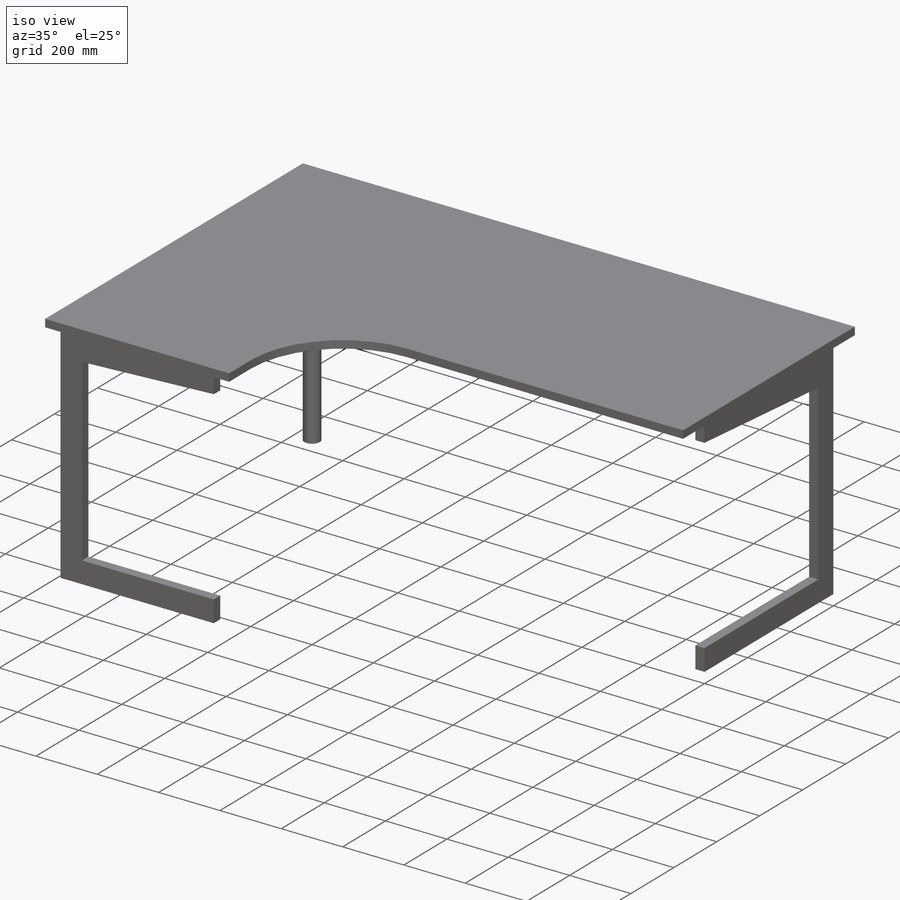
[diagram: iso view]
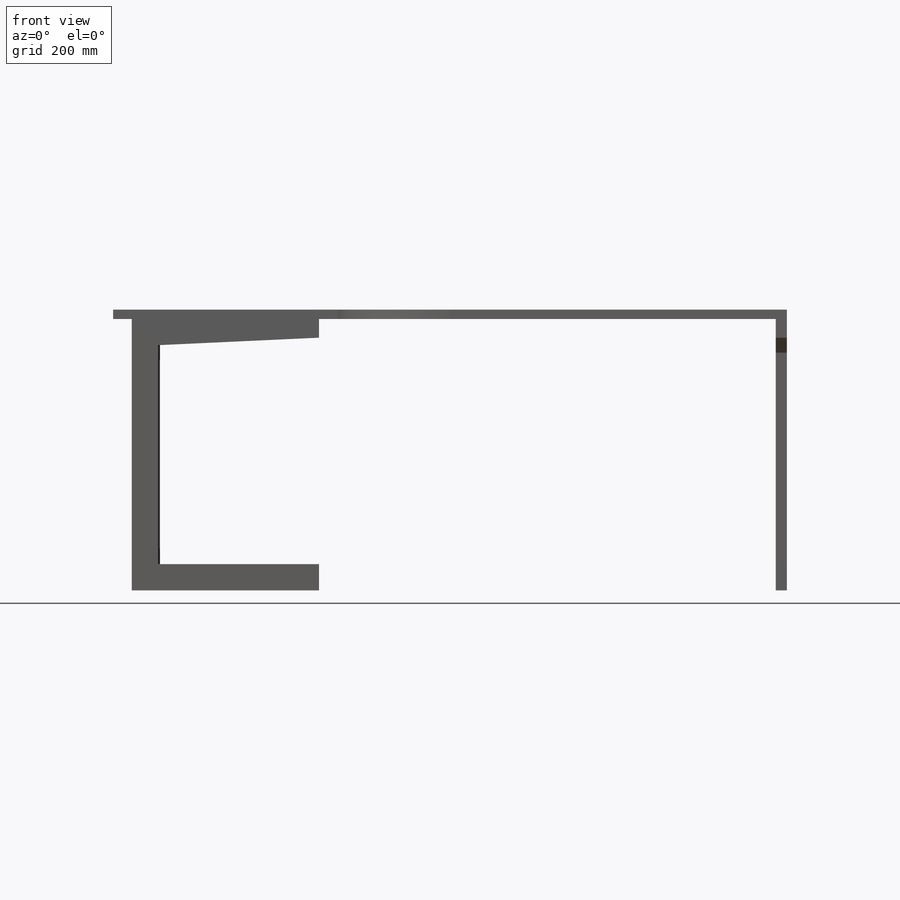
[diagram: front view]
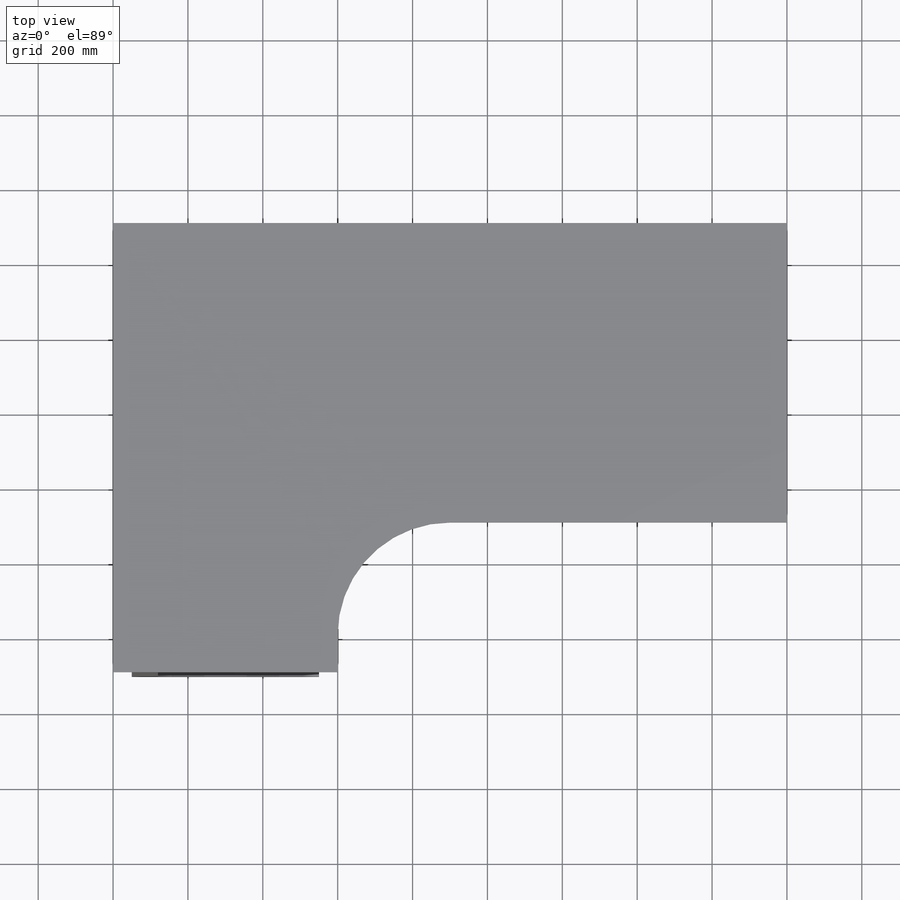
[diagram: top view]
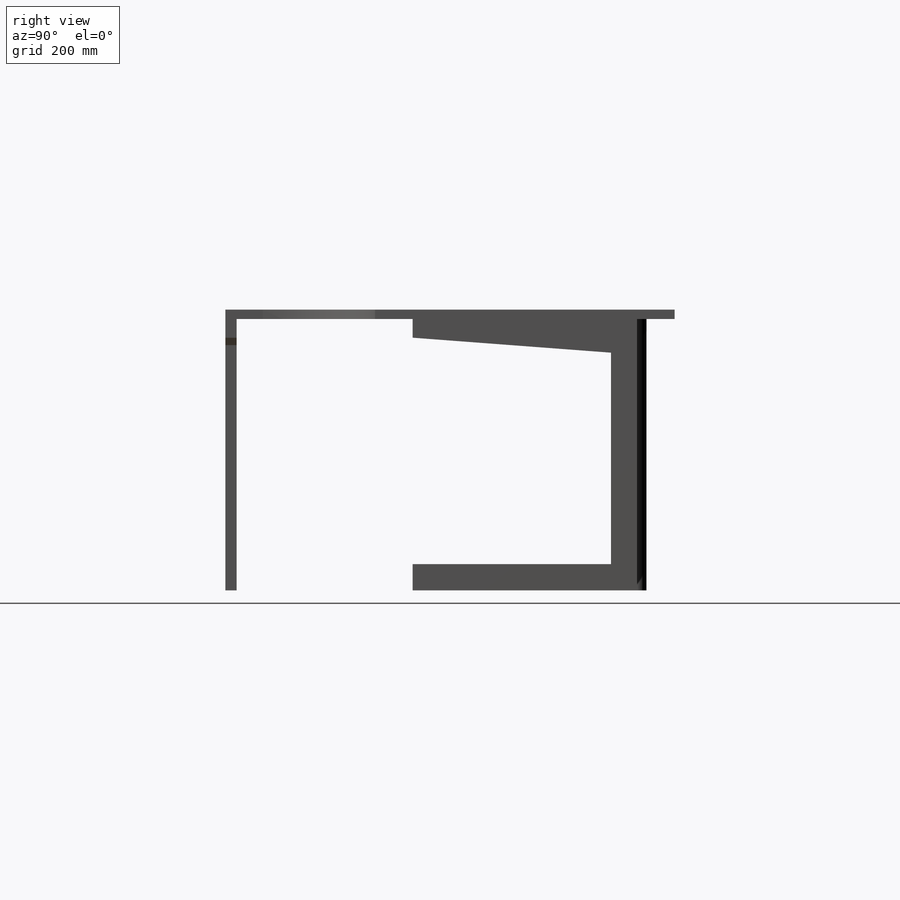
[diagram: right view]
SOLIDWORKS PART (.sldprt)
format: sldprt  version: not decoded by parser v0  size: 242,176 bytes
history: native  units: mm
features: sketch x4, extrude x4, material x1 (+15 scaffold rows collapsed)
feature tree (24):
  scaffold x15  (default folders/planes/origin — collapsed)
  material  "Material <not specified>"
  sketch  "Sketch1"  dims[D1=725.0mm D2=600.0mm D3=70.0mm D4=70.0mm D5=50.0mm D6=600.0mm D7=90.0mm]
  extrude  "Extrude1"  Depth=30mm
  sketch  "Sketch2"  dims[c1.D6=300.0mm c1.D1=1800.0mm c1.D2=1200.0mm c1.D3=100.0mm c1.D4=800.0mm c1.D5=600.0mm c2.D2=1200.0mm c2.D5=600.0mm c2.D6=400.0mm]
  extrude  "Extrude2"  Depth=25mm
  sketch  "Sketch3"  dims[c1.D1=50.0mm c1.D2=70.0mm c1.D3=70.0mm c1.D4=50.0mm c1.D5=70.0mm c1.D6=500.0mm c1.D7=500.0mm c2.D1=50.0mm c2.D4=50.0mm]
  extrude  "Extrude3"  Depth=30mm
  sketch  "Sketch5"  dims[D1=50.0mm D2=100.0mm]
  extrude  "Extrude4"  [1 undecoded]
decode coverage: 7 of 8 modeling features carry decoded parameters
note: 1 parameter value undecoded
note: suppression state not decoded; provenance and decode notes live in map.json
